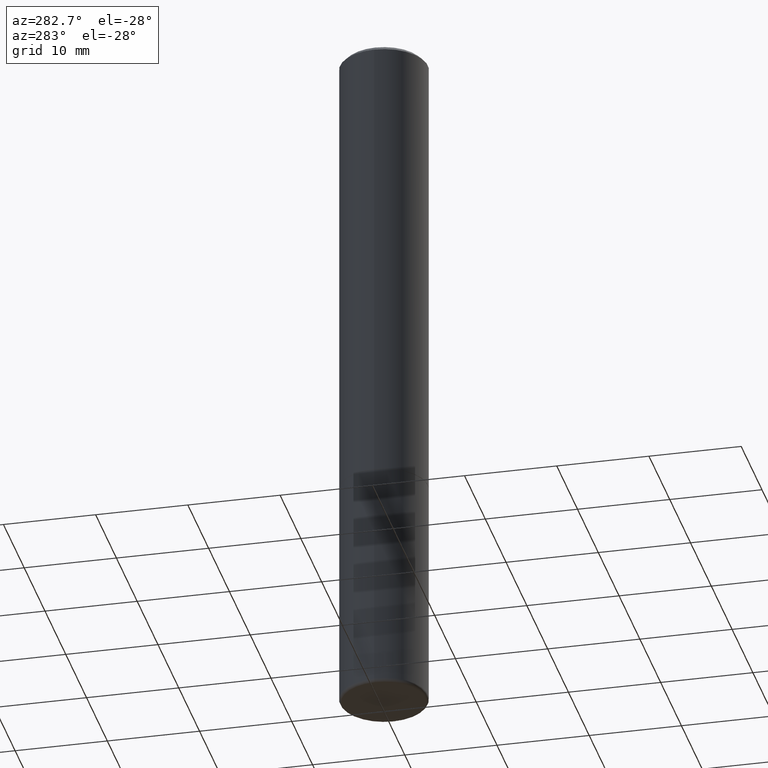
[diagram: clean part render]
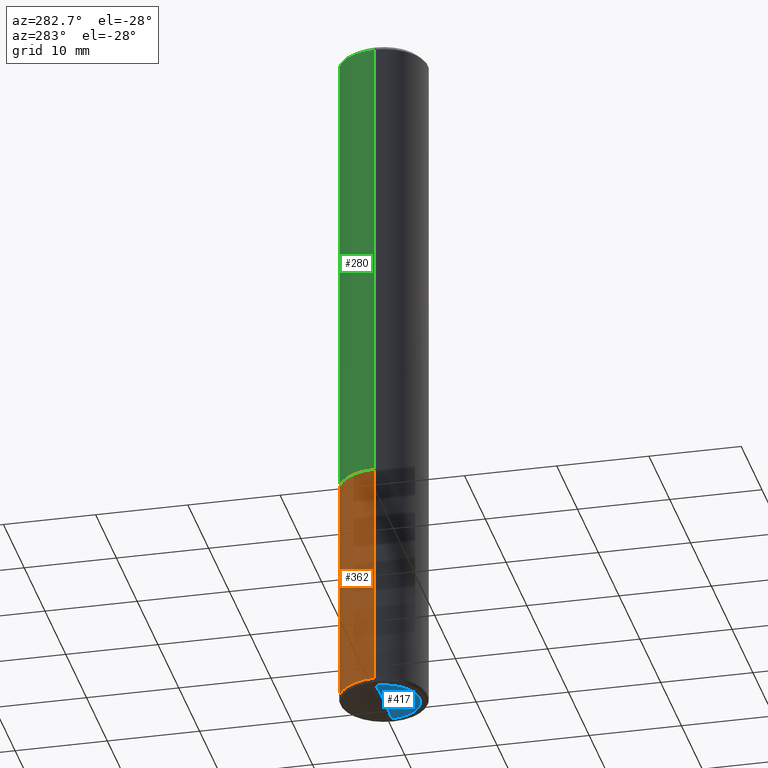
[diagram: same view with three faces highlighted in distinct colors, each labeled with its STEP entity id]
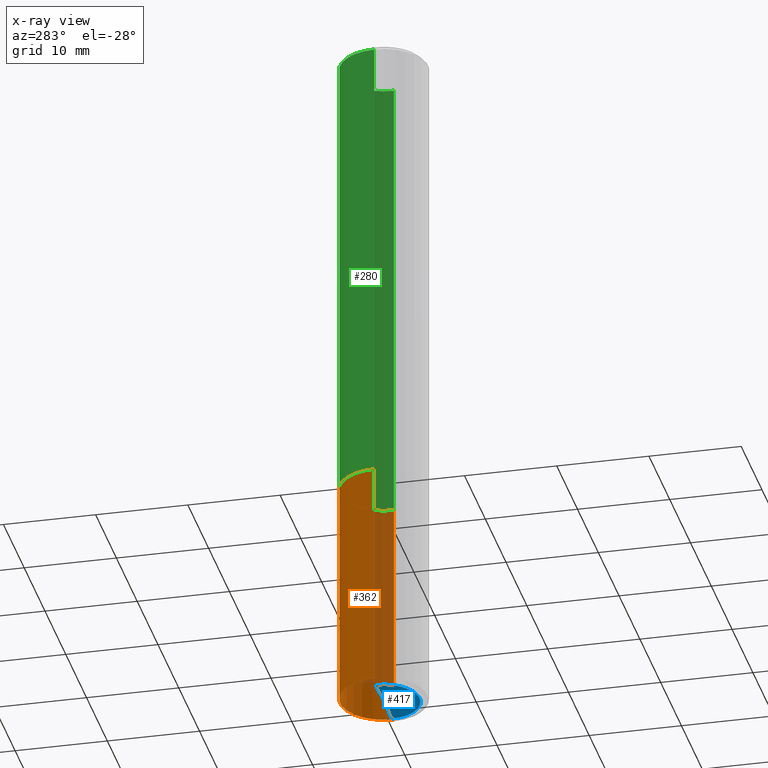
[diagram: x-ray of the same camera — body ghosted, the three highlighted faces saturated]
A machine part, auxiliary view with three faces highlighted in distinct colors.
The next image is the same camera in x-ray (body ghosted, the three faces saturated) — at least one of them is partly hidden behind the body in this view.
Their STEP definitions:

[orange] entity #362 — the highlighted cylindrical surface (partial cylindrical patch) has radius 4.7625 mm, axis along (-0, 0, 1).
#43 = DIRECTION ( 'NONE',  ( 1.000000000000000000, -6.982962677686266711E-15, 0.000000000000000000 ) ) ;
#61 = VERTEX_POINT ( 'NONE', #140 ) ;
#75 = ORIENTED_EDGE ( 'NONE', *, *, #141, .F. ) ;
#97 = EDGE_LOOP ( 'NONE', ( #246, #378, #75, #229 ) ) ;
#105 = DIRECTION ( 'NONE',  ( -2.445468806185136597E-29, 3.491481338843145583E-15, 1.000000000000000000 ) ) ;
#140 = CARTESIAN_POINT ( 'NONE',  ( 0.1874999999999999722, -1.173137929268662858E-14, -2.985000571154037718 ) ) ;
#141 = EDGE_CURVE ( 'NONE', #208, #302, #207, .T. ) ;
#153 = CARTESIAN_POINT ( 'NONE',  ( 0.1874999999999999722, -1.309305502066174811E-15, 9.142831454617378210E-30 ) ) ;
#157 = AXIS2_PLACEMENT_3D ( 'NONE', #272, #105, #350 ) ;
#170 = CARTESIAN_POINT ( 'NONE',  ( -0.1874999999999999722, 1.332267629550187651E-15, -9.223003294227946589E-30 ) ) ;
#179 = FACE_OUTER_BOUND ( 'NONE', #97, .T. ) ;
#186 = AXIS2_PLACEMENT_3D ( 'NONE', #323, #368, #43 ) ;
#207 = CIRCLE ( 'NONE', #186, 0.1875000000000000278 ) ;
#208 = VERTEX_POINT ( 'NONE', #402 ) ;
#218 = EDGE_CURVE ( 'NONE', #261, #302, #244, .T. ) ;
#222 = CARTESIAN_POINT ( 'NONE',  ( -0.1874999999999999722, -7.370250604603186490E-15, -2.985000571154037718 ) ) ;
#229 = ORIENTED_EDGE ( 'NONE', *, *, #461, .F. ) ;
#244 = LINE ( 'NONE', #170, #285 ) ;
#246 = ORIENTED_EDGE ( 'NONE', *, *, #490, .T. ) ;
#247 = CARTESIAN_POINT ( 'NONE',  ( -0.1875000000000000278, -7.370250604603186490E-15, -2.000000000000000444 ) ) ;
#261 = VERTEX_POINT ( 'NONE', #222 ) ;
#266 = AXIS2_PLACEMENT_3D ( 'NONE', #371, #437, #289 ) ;
#269 = DIRECTION ( 'NONE',  ( -2.445468806185136877E-29, 3.491481338843145188E-15, 1.000000000000000000 ) ) ;
#272 = CARTESIAN_POINT ( 'NONE',  ( 7.299725783202014843E-29, -1.042207379062045357E-14, -2.985000571154037718 ) ) ;
#285 = VECTOR ( 'NONE', #333, 39.37007874015748143 ) ;
#289 = DIRECTION ( 'NONE',  ( 1.000000000000000000, -6.982962677686266711E-15, 4.876176775795935793E-29 ) ) ;
#302 = VERTEX_POINT ( 'NONE', #247 ) ;
#307 = VECTOR ( 'NONE', #269, 39.37007874015748143 ) ;
#323 = CARTESIAN_POINT ( 'NONE',  ( 4.890937612370273754E-29, -6.982962677686291954E-15, -2.000000000000000444 ) ) ;
#333 = DIRECTION ( 'NONE',  ( -2.445468806185136877E-29, 3.491481338843145188E-15, 1.000000000000000000 ) ) ;
#350 = DIRECTION ( 'NONE',  ( 1.000000000000000000, -6.982962677686263555E-15, 0.000000000000000000 ) ) ;
#352 = LINE ( 'NONE', #153, #307 ) ;
#362 = ADVANCED_FACE ( 'NONE', ( #179 ), #448, .T. ) ;
#368 = DIRECTION ( 'NONE',  ( -2.445468806185136597E-29, 3.491481338843145583E-15, 1.000000000000000000 ) ) ;
#371 = CARTESIAN_POINT ( 'NONE',  ( 0.000000000000000000, 0.000000000000000000, 0.000000000000000000 ) ) ;
#378 = ORIENTED_EDGE ( 'NONE', *, *, #218, .T. ) ;
#402 = CARTESIAN_POINT ( 'NONE',  ( 0.1875000000000000278, -8.292268179752466962E-15, -2.000000000000000444 ) ) ;
#437 = DIRECTION ( 'NONE',  ( -2.445468806185136597E-29, 3.491481338843145583E-15, 1.000000000000000000 ) ) ;
#448 = CYLINDRICAL_SURFACE ( 'NONE', #266, 0.1874999999999999722 ) ;
#461 = EDGE_CURVE ( 'NONE', #61, #208, #352, .T. ) ;
#490 = EDGE_CURVE ( 'NONE', #61, #261, #491, .T. ) ;
#491 = CIRCLE ( 'NONE', #157, 0.1874999999999999722 ) ;

[blue] entity #417 — the highlighted conical surface has half-angle 88 deg.
#7 = VECTOR ( 'NONE', #341, 39.37007874015748854 ) ;
#29 = LINE ( 'NONE', #221, #7 ) ;
#39 = CONICAL_SURFACE ( 'NONE', #394, 0.1523703519675246587, 1.535889741755009030 ) ;
#45 = CARTESIAN_POINT ( 'NONE',  ( -0.1523703519675246587, -9.409838179720655095E-15, -2.999825473552770294 ) ) ;
#57 = EDGE_CURVE ( 'NONE', #271, #70, #29, .T. ) ;
#66 = EDGE_CURVE ( 'NONE', #70, #309, #69, .T. ) ;
#68 = ORIENTED_EDGE ( 'NONE', *, *, #392, .T. ) ;
#69 = CIRCLE ( 'NONE', #193, 0.1523703519675246587 ) ;
#70 = VERTEX_POINT ( 'NONE', #45 ) ;
#132 = CARTESIAN_POINT ( 'NONE',  ( 0.1523703519675246587, -1.151917115528874791E-14, -2.999825473552770294 ) ) ;
#174 = FACE_OUTER_BOUND ( 'NONE', #188, .T. ) ;
#188 = EDGE_LOOP ( 'NONE', ( #305, #68, #410 ) ) ;
#193 = AXIS2_PLACEMENT_3D ( 'NONE', #300, #262, #293 ) ;
#221 = CARTESIAN_POINT ( 'NONE',  ( -0.1523703519675246587, -9.409838179720655095E-15, -2.999825473552770294 ) ) ;
#262 = DIRECTION ( 'NONE',  ( -2.445468806185136597E-29, 3.491481338843145583E-15, 1.000000000000000000 ) ) ;
#271 = VERTEX_POINT ( 'NONE', #479 ) ;
#275 = VECTOR ( 'NONE', #441, 39.37007874015748854 ) ;
#293 = DIRECTION ( 'NONE',  ( 1.000000000000000000, -6.982962677686263555E-15, 0.000000000000000000 ) ) ;
#300 = CARTESIAN_POINT ( 'NONE',  ( 7.335979619572855964E-29, -1.047383466069579976E-14, -2.999825473552770294 ) ) ;
#305 = ORIENTED_EDGE ( 'NONE', *, *, #57, .F. ) ;
#309 = VERTEX_POINT ( 'NONE', #474 ) ;
#332 = LINE ( 'NONE', #132, #275 ) ;
#335 = CARTESIAN_POINT ( 'NONE',  ( 7.335979619572855964E-29, -1.047383466069579976E-14, -2.999825473552770294 ) ) ;
#338 = DIRECTION ( 'NONE',  ( 2.445468806185136597E-29, -3.491481338843145583E-15, -1.000000000000000000 ) ) ;
#341 = DIRECTION ( 'NONE',  ( -0.9993908270190957621, 6.856857904024552526E-15, -0.03489949670250196839 ) ) ;
#392 = EDGE_CURVE ( 'NONE', #271, #309, #332, .T. ) ;
#394 = AXIS2_PLACEMENT_3D ( 'NONE', #335, #338, #483 ) ;
#410 = ORIENTED_EDGE ( 'NONE', *, *, #66, .F. ) ;
#417 = ADVANCED_FACE ( 'NONE', ( #174 ), #39, .F. ) ;
#441 = DIRECTION ( 'NONE',  ( 0.9993908270190957621, -6.978169709227545432E-15, -0.03489949670250196839 ) ) ;
#474 = CARTESIAN_POINT ( 'NONE',  ( 0.1523703519675246587, -1.151917115528874791E-14, -2.999825473552770294 ) ) ;
#479 = CARTESIAN_POINT ( 'NONE',  ( 7.321328423859252495E-29, -1.045760419356129935E-14, -2.994504583614335580 ) ) ;
#483 = DIRECTION ( 'NONE',  ( -1.000000000000000000, 6.982962677686263555E-15, 0.000000000000000000 ) ) ;

[green] entity #280 — the highlighted cylindrical surface (partial cylindrical patch) has radius 4.7625 mm, axis along (-0, 0, 1).
#11 = CARTESIAN_POINT ( 'NONE',  ( 0.1874999999999996392, -1.309305502066172642E-15, 9.142831454617361395E-30 ) ) ;
#17 = CARTESIAN_POINT ( 'NONE',  ( -0.1874999999999992228, 1.239475875289306582E-15, -0.02000000000000008021 ) ) ;
#46 = DIRECTION ( 'NONE',  ( 1.000000000000000000, -6.982962677686266711E-15, 0.000000000000000000 ) ) ;
#51 = LINE ( 'NONE', #11, #321 ) ;
#58 = VERTEX_POINT ( 'NONE', #103 ) ;
#103 = CARTESIAN_POINT ( 'NONE',  ( -0.1875000000000000278, -2.192382782011959991E-15, -1.999000000000000110 ) ) ;
#104 = VERTEX_POINT ( 'NONE', #443 ) ;
#107 = CIRCLE ( 'NONE', #241, 0.1874999999999992228 ) ;
#113 = DIRECTION ( 'NONE',  ( 1.000000000000000000, -6.982962677686267499E-15, 0.000000000000000000 ) ) ;
#130 = DIRECTION ( 'NONE',  ( -2.445468806185136877E-29, 3.491481338843145188E-15, 1.000000000000000000 ) ) ;
#147 = CIRCLE ( 'NONE', #403, 0.1875000000000000278 ) ;
#150 = DIRECTION ( 'NONE',  ( -2.445468806185136597E-29, 3.491481338843145583E-15, 1.000000000000000000 ) ) ;
#151 = EDGE_CURVE ( 'NONE', #104, #263, #51, .T. ) ;
#216 = FACE_OUTER_BOUND ( 'NONE', #326, .T. ) ;
#219 = CYLINDRICAL_SURFACE ( 'NONE', #413, 0.1874999999999996392 ) ;
#234 = ORIENTED_EDGE ( 'NONE', *, *, #151, .F. ) ;
#241 = AXIS2_PLACEMENT_3D ( 'NONE', #457, #150, #113 ) ;
#249 = DIRECTION ( 'NONE',  ( -2.445468806185136597E-29, 3.491481338843145583E-15, 1.000000000000000000 ) ) ;
#254 = CARTESIAN_POINT ( 'NONE',  ( 4.888492143564088712E-29, -6.979471196347448158E-15, -1.999000000000000110 ) ) ;
#259 = ORIENTED_EDGE ( 'NONE', *, *, #433, .F. ) ;
#263 = VERTEX_POINT ( 'NONE', #406 ) ;
#276 = EDGE_CURVE ( 'NONE', #104, #58, #147, .T. ) ;
#280 = ADVANCED_FACE ( 'NONE', ( #216 ), #219, .T. ) ;
#284 = DIRECTION ( 'NONE',  ( -2.445468806185136877E-29, 3.491481338843145188E-15, 1.000000000000000000 ) ) ;
#296 = LINE ( 'NONE', #398, #454 ) ;
#299 = DIRECTION ( 'NONE',  ( -2.445468806185136597E-29, 3.491481338843145583E-15, 1.000000000000000000 ) ) ;
#321 = VECTOR ( 'NONE', #284, 39.37007874015748143 ) ;
#324 = EDGE_CURVE ( 'NONE', #58, #377, #296, .T. ) ;
#326 = EDGE_LOOP ( 'NONE', ( #354, #375, #259, #234 ) ) ;
#354 = ORIENTED_EDGE ( 'NONE', *, *, #276, .T. ) ;
#375 = ORIENTED_EDGE ( 'NONE', *, *, #324, .T. ) ;
#376 = DIRECTION ( 'NONE',  ( 1.000000000000000000, -6.982962677686267499E-15, 4.876176775795935232E-29 ) ) ;
#377 = VERTEX_POINT ( 'NONE', #17 ) ;
#398 = CARTESIAN_POINT ( 'NONE',  ( -0.1874999999999996392, 1.332267629550185285E-15, -9.223003294227931175E-30 ) ) ;
#403 = AXIS2_PLACEMENT_3D ( 'NONE', #254, #249, #46 ) ;
#406 = CARTESIAN_POINT ( 'NONE',  ( 0.1874999999999992228, -1.356173001359019944E-15, -0.02000000000000008021 ) ) ;
#413 = AXIS2_PLACEMENT_3D ( 'NONE', #485, #299, #376 ) ;
#433 = EDGE_CURVE ( 'NONE', #263, #377, #107, .T. ) ;
#443 = CARTESIAN_POINT ( 'NONE',  ( 0.1875000000000000278, -8.288776698413623955E-15, -1.999000000000000110 ) ) ;
#454 = VECTOR ( 'NONE', #130, 39.37007874015748143 ) ;
#457 = CARTESIAN_POINT ( 'NONE',  ( 4.890937612370293302E-31, -6.982962677686318726E-17, -0.02000000000000008021 ) ) ;
#485 = CARTESIAN_POINT ( 'NONE',  ( 0.000000000000000000, 0.000000000000000000, 0.000000000000000000 ) ) ;